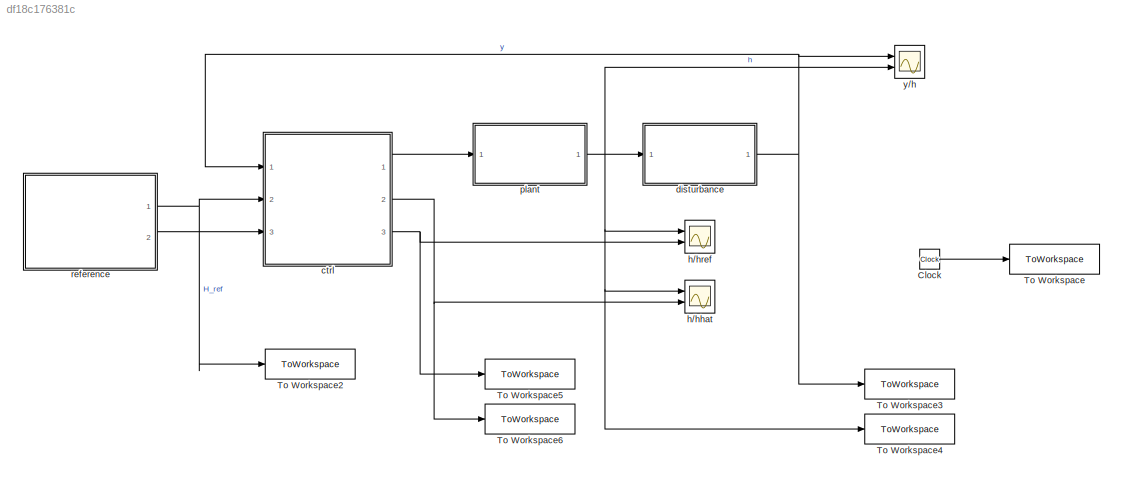
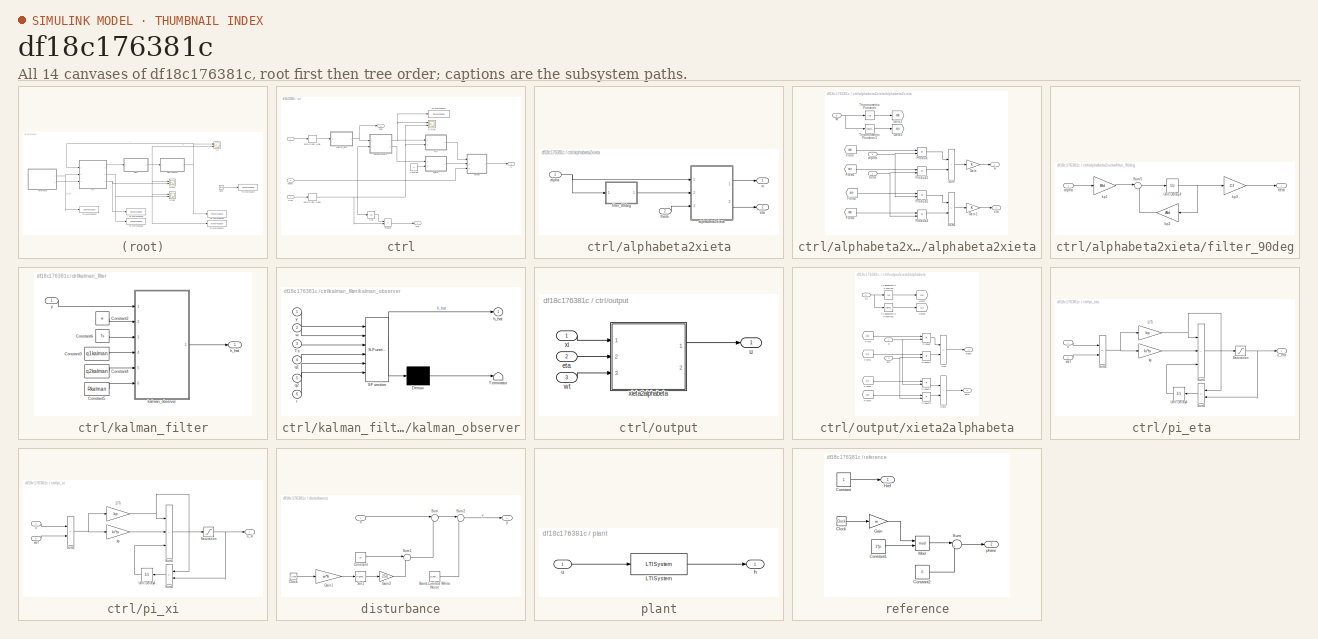
[diagram: thumbnail index - all 14 canvases of the model, root first then tree order]
MODEL slx_df18c176381c
KIND model
CONFIG AbsTol = auto
CONFIG EnableMultiTasking = off
CONFIG FixedStep = auto
CONFIG MaxStep = Ts
CONFIG MinStep = auto
CONFIG RelTol = auto
CONFIG SampleTimeConstraint = Unconstrained
CONFIG Solver = ode23tb
CONFIG SolverName = ode23tb
CONFIG StartTime = 0.0
CONFIG StopTime = simlength
BLOCK [Clock] Clock
BLOCK [ToWorkspace] To Workspace
  FixptAsFi = on
  MaxDataPoints = Nc
  Ports = [1]
  SampleTime = Tc
  VariableName = t
BLOCK [ToWorkspace] To Workspace2
  FixptAsFi = on
  MaxDataPoints = Nc
  Ports = [1]
  SampleTime = Tc
  VariableName = Href_sim
BLOCK [ToWorkspace] To Workspace3
  FixptAsFi = on
  MaxDataPoints = Nc
  Ports = [1]
  SampleTime = Tc
  VariableName = y_sim
BLOCK [ToWorkspace] To Workspace4
  FixptAsFi = on
  MaxDataPoints = Nc
  Ports = [1]
  SampleTime = Tc
  VariableName = h_sim
BLOCK [ToWorkspace] To Workspace5
  FixptAsFi = on
  MaxDataPoints = Nc
  Ports = [1]
  SampleTime = Tc
  VariableName = href_sim
BLOCK [ToWorkspace] To Workspace6
  FixptAsFi = on
  MaxDataPoints = Nc
  Ports = [1]
  SampleTime = Tc
  VariableName = hhat_sim
BLOCK [SubSystem] ctrl
  Ports = [3, 3]
  RequestExecContextInheritance = off
BLOCK [Constant] ctrl/Constant
  Value = 0
BLOCK [Trigonometry] ctrl/Cos
  Operator = cos
  Ports = [1, 1]
BLOCK [Scope] ctrl/H//Href
  Floating = off
  NumInputPorts = 2
  Ports = [2]
  ScopeSpecificationString = Simulink.scopes.TimeScopeBlockCfg('CurrentConfiguration', extmgr.ConfigurationSet(extmgr.Configuration('Core','General UI',true),extmgr.Configuration('Core','Source UI',true),extmgr.Configuration('Sources','WiredSimulink',true,'SampleTime','Ts','DataLoggingVariableName','ScopeData2'),extmgr.Configuration('Visuals','Time Domain',true,'SerializedDisplays',{struct('MinYLimReal','-0.22527','MaxYLimRea...<+1765ch>
BLOCK [Inport] ctrl/Href
  Port = 2
BLOCK [Product] ctrl/Product
  Ports = [2, 1]
BLOCK [ToWorkspace] ctrl/To Workspace1
  FixptAsFi = on
  MaxDataPoints = Nc
  Ports = [1]
  SampleTime = Tc
  VariableName = H_sim
BLOCK [ZeroOrderHold] ctrl/Zero-Order Hold
  SampleTime = Ts
BLOCK [ZeroOrderHold] ctrl/Zero-Order Hold1
  SampleTime = Ts
BLOCK [SubSystem] ctrl/alphabeta2xieta
  Ports = [2, 2]
  RequestExecContextInheritance = off
BLOCK [Inport] ctrl/alphabeta2xieta/alpha
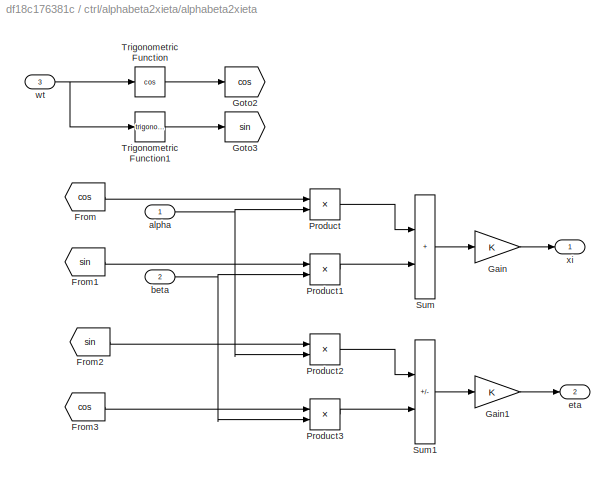
BLOCK [SubSystem] ctrl/alphabeta2xieta/alphabeta2xieta
  Ports = [3, 2]
  RequestExecContextInheritance = off
BLOCK [From] ctrl/alphabeta2xieta/alphabeta2xieta/From
  CloseFcn = tagdialog Close
  GotoTag = cos
BLOCK [From] ctrl/alphabeta2xieta/alphabeta2xieta/From1
  CloseFcn = tagdialog Close
  GotoTag = sin
BLOCK [From] ctrl/alphabeta2xieta/alphabeta2xieta/From2
  CloseFcn = tagdialog Close
  GotoTag = sin
BLOCK [From] ctrl/alphabeta2xieta/alphabeta2xieta/From3
  CloseFcn = tagdialog Close
  GotoTag = cos
BLOCK [Gain] ctrl/alphabeta2xieta/alphabeta2xieta/Gain
BLOCK [Gain] ctrl/alphabeta2xieta/alphabeta2xieta/Gain1
BLOCK [Goto] ctrl/alphabeta2xieta/alphabeta2xieta/Goto2
  GotoTag = cos
BLOCK [Goto] ctrl/alphabeta2xieta/alphabeta2xieta/Goto3
  GotoTag = sin
BLOCK [Product] ctrl/alphabeta2xieta/alphabeta2xieta/Product
  Ports = [2, 1]
  RndMeth = Zero
BLOCK [Product] ctrl/alphabeta2xieta/alphabeta2xieta/Product1
  Ports = [2, 1]
  RndMeth = Zero
BLOCK [Product] ctrl/alphabeta2xieta/alphabeta2xieta/Product2
  Ports = [2, 1]
  RndMeth = Zero
BLOCK [Product] ctrl/alphabeta2xieta/alphabeta2xieta/Product3
  Ports = [2, 1]
  RndMeth = Zero
BLOCK [Sum] ctrl/alphabeta2xieta/alphabeta2xieta/Sum
  IconShape = rectangular
  Ports = [2, 1]
BLOCK [Sum] ctrl/alphabeta2xieta/alphabeta2xieta/Sum1
  IconShape = rectangular
  Inputs = -+
  Ports = [2, 1]
BLOCK [Trigonometry] ctrl/alphabeta2xieta/alphabeta2xieta/Trigonometric Function
  Operator = cos
  Ports = [1, 1]
BLOCK [Trigonometry] ctrl/alphabeta2xieta/alphabeta2xieta/Trigonometric Function1
  Ports = [1, 1]
BLOCK [Inport] ctrl/alphabeta2xieta/alphabeta2xieta/alpha
BLOCK [Inport] ctrl/alphabeta2xieta/alphabeta2xieta/beta
  Port = 2
BLOCK [Outport] ctrl/alphabeta2xieta/alphabeta2xieta/eta
  Port = 2
  VectorParamsAs1DForOutWhenUnconnected = off
BLOCK [Inport] ctrl/alphabeta2xieta/alphabeta2xieta/wt
  Port = 3
BLOCK [Outport] ctrl/alphabeta2xieta/alphabeta2xieta/xi
  VectorParamsAs1DForOutWhenUnconnected = off
BLOCK [Outport] ctrl/alphabeta2xieta/eta
  Port = 2
BLOCK [SubSystem] ctrl/alphabeta2xieta/filter_90deg
  Ports = [1, 1]
  RequestExecContextInheritance = off
BLOCK [Sum] ctrl/alphabeta2xieta/filter_90deg/Sum5
  Inputs = |++
  Ports = [2, 1]
BLOCK [UnitDelay] ctrl/alphabeta2xieta/filter_90deg/Unit Delay4
  HasFrameUpgradeWarning = on
  NameLocation = top
  SampleTime = Ts
BLOCK [Inport] ctrl/alphabeta2xieta/filter_90deg/alpha
BLOCK [Outport] ctrl/alphabeta2xieta/filter_90deg/beta
BLOCK [Gain] ctrl/alphabeta2xieta/filter_90deg/kp1
  Gain = Bfd
  Multiplication = Matrix(K*u)
  OutDataTypeStr = Inherit: Same as input
  ParamDataTypeStr = Inherit: Same as input
  SaturateOnIntegerOverflow = on
BLOCK [Gain] ctrl/alphabeta2xieta/filter_90deg/kp2
  Gain = Afd
  Multiplication = Matrix(K*u)
  NameLocation = top
  OutDataTypeStr = Inherit: Same as input
  ParamDataTypeStr = Inherit: Same as input
  SaturateOnIntegerOverflow = on
BLOCK [Gain] ctrl/alphabeta2xieta/filter_90deg/kp3
  Gain = Cf
  Multiplication = Matrix(K*u)
  OutDataTypeStr = Inherit: Same as input
  ParamDataTypeStr = Inherit: Same as input
  SaturateOnIntegerOverflow = on
BLOCK [Inport] ctrl/alphabeta2xieta/theta
  Port = 2
BLOCK [Outport] ctrl/alphabeta2xieta/xi
BLOCK [Outport] ctrl/hhat
  Port = 2
  VectorParamsAs1DForOutWhenUnconnected = off
BLOCK [Outport] ctrl/href
  Port = 3
  VectorParamsAs1DForOutWhenUnconnected = off
BLOCK [SubSystem] ctrl/kalman_filter
  Ports = [1, 1]
  RequestExecContextInheritance = off
BLOCK [Constant] ctrl/kalman_filter/Constant2
  Value = w
BLOCK [Constant] ctrl/kalman_filter/Constant3
  Value = q1kalman
BLOCK [Constant] ctrl/kalman_filter/Constant4
  Value = q2kalman
BLOCK [Constant] ctrl/kalman_filter/Constant5
  Value = Rkalman
BLOCK [Constant] ctrl/kalman_filter/Constant6
  Value = Ts
BLOCK [Outport] ctrl/kalman_filter/h_hat
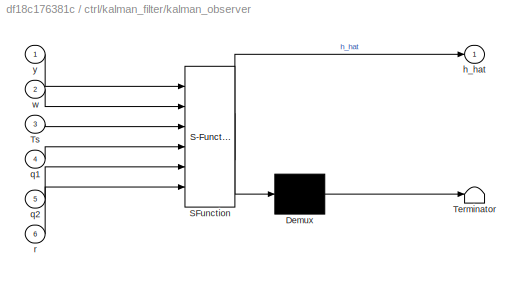
BLOCK [SubSystem] ctrl/kalman_filter/kalman_observer
  ErrorFcn = Stateflow.Translate.translate
  PermitHierarchicalResolution = ExplicitOnly
  Ports = [6, 1]
  RequestExecContextInheritance = off
  SFBlockType = MATLAB Function
  SystemSampleTime = Ts
  TreatAsAtomicUnit = on
  TreatAsGroupedWhenPropagatingVariantConditions = off
BLOCK [Demux] ctrl/kalman_filter/kalman_observer/ Demux 
  Outputs = 1
  Ports = [1, 1]
BLOCK [S-Function] ctrl/kalman_filter/kalman_observer/ SFunction 
  EnableBusSupport = on
  FunctionName = sf_sfun
  PortCounts = [6 2]
  Ports = [6, 2]
  SFcnIsStateOwnerBlock = off
  SFunctionDeploymentMode = off
  Tag = Stateflow S-Function 2
BLOCK [Terminator] ctrl/kalman_filter/kalman_observer/ Terminator 
BLOCK [Inport] ctrl/kalman_filter/kalman_observer/Ts
  Port = 3
BLOCK [Outport] ctrl/kalman_filter/kalman_observer/h_hat
  VectorParamsAs1DForOutWhenUnconnected = off
BLOCK [Inport] ctrl/kalman_filter/kalman_observer/q1
  Port = 4
BLOCK [Inport] ctrl/kalman_filter/kalman_observer/q2
  Port = 5
BLOCK [Inport] ctrl/kalman_filter/kalman_observer/r
  Port = 6
BLOCK [Inport] ctrl/kalman_filter/kalman_observer/w
  Port = 2
BLOCK [Inport] ctrl/kalman_filter/kalman_observer/y
BLOCK [Inport] ctrl/kalman_filter/y
BLOCK [SubSystem] ctrl/output
  Ports = [3, 1]
  RequestExecContextInheritance = off
BLOCK [Inport] ctrl/output/eta
  Port = 2
BLOCK [Outport] ctrl/output/u
  VectorParamsAs1DForOutWhenUnconnected = off
BLOCK [Inport] ctrl/output/wt
  Port = 3
BLOCK [Inport] ctrl/output/xi
BLOCK [SubSystem] ctrl/output/xieta2alphabeta
  Ports = [3, 2]
  RequestExecContextInheritance = off
BLOCK [From] ctrl/output/xieta2alphabeta/From
  CloseFcn = tagdialog Close
  GotoTag = cos
BLOCK [From] ctrl/output/xieta2alphabeta/From1
  CloseFcn = tagdialog Close
  GotoTag = sin
BLOCK [From] ctrl/output/xieta2alphabeta/From2
  CloseFcn = tagdialog Close
  GotoTag = sin
BLOCK [From] ctrl/output/xieta2alphabeta/From3
  CloseFcn = tagdialog Close
  GotoTag = cos
BLOCK [Goto] ctrl/output/xieta2alphabeta/Goto2
  GotoTag = cos
BLOCK [Goto] ctrl/output/xieta2alphabeta/Goto3
  GotoTag = sin
BLOCK [Product] ctrl/output/xieta2alphabeta/Product
  Ports = [2, 1]
  RndMeth = Zero
BLOCK [Product] ctrl/output/xieta2alphabeta/Product1
  Ports = [2, 1]
  RndMeth = Zero
BLOCK [Product] ctrl/output/xieta2alphabeta/Product2
  Ports = [2, 1]
  RndMeth = Zero
BLOCK [Product] ctrl/output/xieta2alphabeta/Product3
  Ports = [2, 1]
  RndMeth = Zero
BLOCK [Sum] ctrl/output/xieta2alphabeta/Sum
  IconShape = rectangular
  Inputs = +-
  Ports = [2, 1]
BLOCK [Sum] ctrl/output/xieta2alphabeta/Sum1
  IconShape = rectangular
  Ports = [2, 1]
BLOCK [Trigonometry] ctrl/output/xieta2alphabeta/Trigonometric Function
  Operator = cos
  Ports = [1, 1]
BLOCK [Trigonometry] ctrl/output/xieta2alphabeta/Trigonometric Function1
  Ports = [1, 1]
BLOCK [Outport] ctrl/output/xieta2alphabeta/alpha
  VectorParamsAs1DForOutWhenUnconnected = off
BLOCK [Outport] ctrl/output/xieta2alphabeta/beta
  Port = 2
  VectorParamsAs1DForOutWhenUnconnected = off
BLOCK [Inport] ctrl/output/xieta2alphabeta/eta
  Port = 2
BLOCK [Inport] ctrl/output/xieta2alphabeta/wt
  Port = 3
BLOCK [Inport] ctrl/output/xieta2alphabeta/xi
BLOCK [Inport] ctrl/phase
  Port = 3
BLOCK [SubSystem] ctrl/pi_eta 
  Ports = [2, 1]
  RequestExecContextInheritance = off
BLOCK [Gain] ctrl/pi_eta /1//Ti
  Gain = kp
  OutDataTypeStr = Inherit: Same as input
  ParamDataTypeStr = Inherit: Same as input
  SaturateOnIntegerOverflow = on
BLOCK [Saturate] ctrl/pi_eta /Saturation
  LowerLimit = sat_neg
  UpperLimit = sat_pos
BLOCK [Sum] ctrl/pi_eta /Sum1
  IconShape = rectangular
  Inputs = +++
  Ports = [3, 1]
  SaturateOnIntegerOverflow = on
BLOCK [Sum] ctrl/pi_eta /Sum2
  IconShape = rectangular
  Inputs = -+
  Ports = [2, 1]
  SaturateOnIntegerOverflow = on
BLOCK [Sum] ctrl/pi_eta /Sum3
  IconShape = rectangular
  Inputs = -+
  NameLocation = top
  Ports = [2, 1]
  SaturateOnIntegerOverflow = on
BLOCK [UnitDelay] ctrl/pi_eta /Unit Delay4
  HasFrameUpgradeWarning = on
  SampleTime = ts
BLOCK [Gain] ctrl/pi_eta /kp
  Gain = ki*ts
  OutDataTypeStr = Inherit: Same as input
  ParamDataTypeStr = Inherit: Same as input
  SaturateOnIntegerOverflow = on
BLOCK [Outport] ctrl/pi_eta /u_eta
BLOCK [Inport] ctrl/pi_eta /x
BLOCK [Inport] ctrl/pi_eta /xref
  Port = 2
BLOCK [SubSystem] ctrl/pi_xi
  Ports = [2, 1]
  RequestExecContextInheritance = off
BLOCK [Gain] ctrl/pi_xi/1//Ti
  Gain = kp
  OutDataTypeStr = Inherit: Same as input
  ParamDataTypeStr = Inherit: Same as input
  SaturateOnIntegerOverflow = on
BLOCK [Saturate] ctrl/pi_xi/Saturation
  LowerLimit = sat_neg
  UpperLimit = sat_pos
BLOCK [Sum] ctrl/pi_xi/Sum1
  IconShape = rectangular
  Inputs = +++
  Ports = [3, 1]
  SaturateOnIntegerOverflow = on
BLOCK [Sum] ctrl/pi_xi/Sum2
  IconShape = rectangular
  Inputs = -+
  Ports = [2, 1]
  SaturateOnIntegerOverflow = on
BLOCK [Sum] ctrl/pi_xi/Sum3
  IconShape = rectangular
  Inputs = -+
  NameLocation = top
  Ports = [2, 1]
  SaturateOnIntegerOverflow = on
BLOCK [UnitDelay] ctrl/pi_xi/Unit Delay4
  HasFrameUpgradeWarning = on
  SampleTime = ts
BLOCK [Gain] ctrl/pi_xi/kp
  Gain = ki*ts
  OutDataTypeStr = Inherit: Same as input
  ParamDataTypeStr = Inherit: Same as input
  SaturateOnIntegerOverflow = on
BLOCK [Outport] ctrl/pi_xi/u_xi
BLOCK [Inport] ctrl/pi_xi/x
BLOCK [Inport] ctrl/pi_xi/xref
  Port = 2
BLOCK [Outport] ctrl/u
  VectorParamsAs1DForOutWhenUnconnected = off
BLOCK [Inport] ctrl/y
BLOCK [SubSystem] disturbance
  Ports = [1, 1]
  RequestExecContextInheritance = off
BLOCK [Reference] disturbance/Band-Limited White Noise  REF=simulink/Sources/Band-Limited
White Noise
  Ports = [0, 1]
  SourceBlock = simulink/Sources/Band-Limited\nWhite Noise
  SourceProductBaseCode = SL
  SourceType = Band-Limited White Noise.
BLOCK [Clock] disturbance/Clock
BLOCK [Constant] disturbance/Constant
  Value = 10
BLOCK [Gain] disturbance/Gain1
  Gain = w*6
BLOCK [Gain] disturbance/Gain3
  Gain = 250
BLOCK [Trigonometry] disturbance/Sin1
  Ports = [1, 1]
BLOCK [Sum] disturbance/Sum
  Inputs = |++
  Ports = [2, 1]
BLOCK [Sum] disturbance/Sum1
  Inputs = |++
  Ports = [2, 1]
BLOCK [Sum] disturbance/Sum2
  Inputs = |++
  Ports = [2, 1]
BLOCK [Inport] disturbance/h
BLOCK [Outport] disturbance/y
BLOCK [Scope] h//hhat
  Floating = off
  NumInputPorts = 2
  Ports = [2]
  ScopeSpecificationString = Simulink.scopes.TimeScopeBlockCfg('CurrentConfiguration', extmgr.ConfigurationSet(extmgr.Configuration('Core','General UI',true),extmgr.Configuration('Core','Source UI',true),extmgr.Configuration('Sources','WiredSimulink',true,'SampleTime','Ts','DataLoggingVariableName','ScopeData1'),extmgr.Configuration('Visuals','Time Domain',true,'SerializedDisplays',{struct('MinYLimReal','-0.98348','MaxYLimRea...<+1745ch>
BLOCK [Scope] h//href
  Floating = off
  NumInputPorts = 2
  Ports = [2]
  ScopeSpecificationString = Simulink.scopes.TimeScopeBlockCfg('CurrentConfiguration', extmgr.ConfigurationSet(extmgr.Configuration('Core','General UI',true),extmgr.Configuration('Core','Source UI',true),extmgr.Configuration('Sources','WiredSimulink',true,'SampleTime','Ts'),extmgr.Configuration('Visuals','Time Domain',true,'SerializedDisplays',{struct('MinYLimReal','-2.16077','MaxYLimReal','1.79359','YLabelReal','','MinYLimMa...<+1703ch>
BLOCK [SubSystem] plant
  Ports = [1, 1]
  RequestExecContextInheritance = off
BLOCK [Reference] plant/LTI System  REF=cstblocks/LTI System
  Ports = [1, 1]
  SourceBlock = cstblocks/LTI System
  SourceProductBaseCode = CT
  SourceType = LTI Block
BLOCK [Outport] plant/h
  VectorParamsAs1DForOutWhenUnconnected = off
BLOCK [Inport] plant/u
BLOCK [SubSystem] reference
  Ports = [0, 2]
  RequestExecContextInheritance = off
BLOCK [Clock] reference/Clock
BLOCK [Constant] reference/Constant
BLOCK [Constant] reference/Constant1
  Value = 2*pi
BLOCK [Constant] reference/Constant2
  Value = 0
BLOCK [Gain] reference/Gain
  Gain = w
BLOCK [Outport] reference/Href
BLOCK [Math] reference/Mod
  Operator = mod
  Ports = [2, 1]
BLOCK [Sum] reference/Sum
  Inputs = |++
  Ports = [2, 1]
BLOCK [Outport] reference/phase
  Port = 2
BLOCK [Scope] y//h
  Floating = off
  NumInputPorts = 2
  Ports = [2]
  ScopeSpecificationString = Simulink.scopes.TimeScopeBlockCfg('CurrentConfiguration', extmgr.ConfigurationSet(extmgr.Configuration('Core','General UI',true),extmgr.Configuration('Core','Source UI',true),extmgr.Configuration('Sources','WiredSimulink',true,'DataLoggingVariableName','ScopeData1','SampleTime','Ts'),extmgr.Configuration('Visuals','Time Domain',true,'SerializedDisplays',{struct('MinYLimReal','-13.92521','MaxYLimRe...<+2459ch>
LINE Clock:1 -> To Workspace:1
LINE ctrl/Constant:1 -> ctrl/pi_eta :2
LINE ctrl/Cos:1 -> ctrl/Product:1
LINE ctrl/Href:1 -> ctrl/Zero-Order Hold1:1
LINE ctrl/Product:1 -> ctrl/href:1
NET ctrl/Zero-Order Hold1:1 -> ctrl/H//Href:2, ctrl/Product:2, ctrl/pi_xi:2
LINE ctrl/Zero-Order Hold:1 -> ctrl/kalman_filter:1
NET ctrl/alphabeta2xieta/alpha:1 -> ctrl/alphabeta2xieta/alphabeta2xieta:1, ctrl/alphabeta2xieta/filter_90deg:1
LINE ctrl/alphabeta2xieta/alphabeta2xieta/From1:1 -> ctrl/alphabeta2xieta/alphabeta2xieta/Product1:1
LINE ctrl/alphabeta2xieta/alphabeta2xieta/From2:1 -> ctrl/alphabeta2xieta/alphabeta2xieta/Product2:1
LINE ctrl/alphabeta2xieta/alphabeta2xieta/From3:1 -> ctrl/alphabeta2xieta/alphabeta2xieta/Product3:1
LINE ctrl/alphabeta2xieta/alphabeta2xieta/From:1 -> ctrl/alphabeta2xieta/alphabeta2xieta/Product:1
LINE ctrl/alphabeta2xieta/alphabeta2xieta/Gain1:1 -> ctrl/alphabeta2xieta/alphabeta2xieta/eta:1
LINE ctrl/alphabeta2xieta/alphabeta2xieta/Gain:1 -> ctrl/alphabeta2xieta/alphabeta2xieta/xi:1
LINE ctrl/alphabeta2xieta/alphabeta2xieta/Product1:1 -> ctrl/alphabeta2xieta/alphabeta2xieta/Sum:2
LINE ctrl/alphabeta2xieta/alphabeta2xieta/Product2:1 -> ctrl/alphabeta2xieta/alphabeta2xieta/Sum1:1
LINE ctrl/alphabeta2xieta/alphabeta2xieta/Product3:1 -> ctrl/alphabeta2xieta/alphabeta2xieta/Sum1:2
LINE ctrl/alphabeta2xieta/alphabeta2xieta/Product:1 -> ctrl/alphabeta2xieta/alphabeta2xieta/Sum:1
LINE ctrl/alphabeta2xieta/alphabeta2xieta/Sum1:1 -> ctrl/alphabeta2xieta/alphabeta2xieta/Gain1:1
LINE ctrl/alphabeta2xieta/alphabeta2xieta/Sum:1 -> ctrl/alphabeta2xieta/alphabeta2xieta/Gain:1
LINE ctrl/alphabeta2xieta/alphabeta2xieta/Trigonometric Function1:1 -> ctrl/alphabeta2xieta/alphabeta2xieta/Goto3:1
LINE ctrl/alphabeta2xieta/alphabeta2xieta/Trigonometric Function:1 -> ctrl/alphabeta2xieta/alphabeta2xieta/Goto2:1
NET ctrl/alphabeta2xieta/alphabeta2xieta/alpha:1 -> ctrl/alphabeta2xieta/alphabeta2xieta/Product2:2, ctrl/alphabeta2xieta/alphabeta2xieta/Product:2
NET ctrl/alphabeta2xieta/alphabeta2xieta/beta:1 -> ctrl/alphabeta2xieta/alphabeta2xieta/Product1:2, ctrl/alphabeta2xieta/alphabeta2xieta/Product3:2
NET ctrl/alphabeta2xieta/alphabeta2xieta/wt:1 -> ctrl/alphabeta2xieta/alphabeta2xieta/Trigonometric Function1:1, ctrl/alphabeta2xieta/alphabeta2xieta/Trigonometric Function:1
LINE ctrl/alphabeta2xieta/alphabeta2xieta:1 -> ctrl/alphabeta2xieta/xi:1
LINE ctrl/alphabeta2xieta/alphabeta2xieta:2 -> ctrl/alphabeta2xieta/eta:1
LINE ctrl/alphabeta2xieta/filter_90deg/Sum5:1 -> ctrl/alphabeta2xieta/filter_90deg/Unit Delay4:1
NET ctrl/alphabeta2xieta/filter_90deg/Unit Delay4:1 -> ctrl/alphabeta2xieta/filter_90deg/kp2:1, ctrl/alphabeta2xieta/filter_90deg/kp3:1
LINE ctrl/alphabeta2xieta/filter_90deg/alpha:1 -> ctrl/alphabeta2xieta/filter_90deg/kp1:1
LINE ctrl/alphabeta2xieta/filter_90deg/kp1:1 -> ctrl/alphabeta2xieta/filter_90deg/Sum5:1
LINE ctrl/alphabeta2xieta/filter_90deg/kp2:1 -> ctrl/alphabeta2xieta/filter_90deg/Sum5:2
LINE ctrl/alphabeta2xieta/filter_90deg/kp3:1 -> ctrl/alphabeta2xieta/filter_90deg/beta:1
LINE ctrl/alphabeta2xieta/filter_90deg:1 -> ctrl/alphabeta2xieta/alphabeta2xieta:2
LINE ctrl/alphabeta2xieta/theta:1 -> ctrl/alphabeta2xieta/alphabeta2xieta:3
NET ctrl/alphabeta2xieta:1 -> ctrl/H//Href:1, ctrl/To Workspace1:1, ctrl/pi_xi:1
LINE ctrl/alphabeta2xieta:2 -> ctrl/pi_eta :1
LINE ctrl/kalman_filter/Constant2:1 -> ctrl/kalman_filter/kalman_observer:2
LINE ctrl/kalman_filter/Constant3:1 -> ctrl/kalman_filter/kalman_observer:4
LINE ctrl/kalman_filter/Constant4:1 -> ctrl/kalman_filter/kalman_observer:5
LINE ctrl/kalman_filter/Constant5:1 -> ctrl/kalman_filter/kalman_observer:6
LINE ctrl/kalman_filter/Constant6:1 -> ctrl/kalman_filter/kalman_observer:3
LINE ctrl/kalman_filter/kalman_observer:1 -> ctrl/kalman_filter/h_hat:1
LINE ctrl/kalman_filter/y:1 -> ctrl/kalman_filter/kalman_observer:1
NET ctrl/kalman_filter:1 -> ctrl/alphabeta2xieta:1, ctrl/hhat:1
LINE ctrl/output/eta:1 -> ctrl/output/xieta2alphabeta:2
LINE ctrl/output/wt:1 -> ctrl/output/xieta2alphabeta:3
LINE ctrl/output/xi:1 -> ctrl/output/xieta2alphabeta:1
LINE ctrl/output/xieta2alphabeta/From1:1 -> ctrl/output/xieta2alphabeta/Product1:1
LINE ctrl/output/xieta2alphabeta/From2:1 -> ctrl/output/xieta2alphabeta/Product2:1
LINE ctrl/output/xieta2alphabeta/From3:1 -> ctrl/output/xieta2alphabeta/Product3:1
LINE ctrl/output/xieta2alphabeta/From:1 -> ctrl/output/xieta2alphabeta/Product:1
LINE ctrl/output/xieta2alphabeta/Product1:1 -> ctrl/output/xieta2alphabeta/Sum:2
LINE ctrl/output/xieta2alphabeta/Product2:1 -> ctrl/output/xieta2alphabeta/Sum1:1
LINE ctrl/output/xieta2alphabeta/Product3:1 -> ctrl/output/xieta2alphabeta/Sum1:2
LINE ctrl/output/xieta2alphabeta/Product:1 -> ctrl/output/xieta2alphabeta/Sum:1
LINE ctrl/output/xieta2alphabeta/Sum1:1 -> ctrl/output/xieta2alphabeta/beta:1
LINE ctrl/output/xieta2alphabeta/Sum:1 -> ctrl/output/xieta2alphabeta/alpha:1
LINE ctrl/output/xieta2alphabeta/Trigonometric Function1:1 -> ctrl/output/xieta2alphabeta/Goto3:1
LINE ctrl/output/xieta2alphabeta/Trigonometric Function:1 -> ctrl/output/xieta2alphabeta/Goto2:1
NET ctrl/output/xieta2alphabeta/eta:1 -> ctrl/output/xieta2alphabeta/Product1:2, ctrl/output/xieta2alphabeta/Product3:2
NET ctrl/output/xieta2alphabeta/wt:1 -> ctrl/output/xieta2alphabeta/Trigonometric Function1:1, ctrl/output/xieta2alphabeta/Trigonometric Function:1
NET ctrl/output/xieta2alphabeta/xi:1 -> ctrl/output/xieta2alphabeta/Product2:2, ctrl/output/xieta2alphabeta/Product:2
LINE ctrl/output/xieta2alphabeta:1 -> ctrl/output/u:1
LINE ctrl/output:1 -> ctrl/u:1
NET ctrl/phase:1 -> ctrl/Cos:1, ctrl/alphabeta2xieta:2, ctrl/output:3
NET ctrl/pi_eta /1//Ti:1 -> ctrl/pi_eta /Sum1:1, ctrl/pi_eta /Sum3:1
NET ctrl/pi_eta /Saturation:1 -> ctrl/pi_eta /Sum3:2, ctrl/pi_eta /u_eta:1
LINE ctrl/pi_eta /Sum1:1 -> ctrl/pi_eta /Saturation:1
NET ctrl/pi_eta /Sum2:1 -> ctrl/pi_eta /1//Ti:1, ctrl/pi_eta /kp:1
LINE ctrl/pi_eta /Sum3:1 -> ctrl/pi_eta /Unit Delay4:1
LINE ctrl/pi_eta /Unit Delay4:1 -> ctrl/pi_eta /Sum1:3
LINE ctrl/pi_eta /kp:1 -> ctrl/pi_eta /Sum1:2
LINE ctrl/pi_eta /x:1 -> ctrl/pi_eta /Sum2:1
LINE ctrl/pi_eta /xref:1 -> ctrl/pi_eta /Sum2:2
LINE ctrl/pi_eta :1 -> ctrl/output:2
NET ctrl/pi_xi/1//Ti:1 -> ctrl/pi_xi/Sum1:1, ctrl/pi_xi/Sum3:1
NET ctrl/pi_xi/Saturation:1 -> ctrl/pi_xi/Sum3:2, ctrl/pi_xi/u_xi:1
LINE ctrl/pi_xi/Sum1:1 -> ctrl/pi_xi/Saturation:1
NET ctrl/pi_xi/Sum2:1 -> ctrl/pi_xi/1//Ti:1, ctrl/pi_xi/kp:1
LINE ctrl/pi_xi/Sum3:1 -> ctrl/pi_xi/Unit Delay4:1
LINE ctrl/pi_xi/Unit Delay4:1 -> ctrl/pi_xi/Sum1:3
LINE ctrl/pi_xi/kp:1 -> ctrl/pi_xi/Sum1:2
LINE ctrl/pi_xi/x:1 -> ctrl/pi_xi/Sum2:1
LINE ctrl/pi_xi/xref:1 -> ctrl/pi_xi/Sum2:2
LINE ctrl/pi_xi:1 -> ctrl/output:1
LINE ctrl/y:1 -> ctrl/Zero-Order Hold:1
LINE ctrl:1 -> plant:1
NET ctrl:2 -> To Workspace6:1, h//hhat:2
NET ctrl:3 -> To Workspace5:1, h//href:2
LINE disturbance/Band-Limited White Noise:1 -> disturbance/Sum2:2
LINE disturbance/Clock:1 -> disturbance/Gain1:1
LINE disturbance/Constant:1 -> disturbance/Sum1:1
LINE disturbance/Gain1:1 -> disturbance/Sin1:1
LINE disturbance/Gain3:1 -> disturbance/Sum1:2
LINE disturbance/Sin1:1 -> disturbance/Gain3:1
LINE disturbance/Sum1:1 -> disturbance/Sum:2
LINE disturbance/Sum2:1 -> disturbance/y:1
LINE disturbance/Sum:1 -> disturbance/Sum2:1
LINE disturbance/h:1 -> disturbance/Sum:1
NET disturbance:1 -> To Workspace3:1, ctrl:1, y//h:1
LINE plant/LTI System:1 -> plant/h:1
LINE plant/u:1 -> plant/LTI System:1
NET plant:1 -> To Workspace4:1, disturbance:1, h//hhat:1, h//href:1, y//h:2
LINE reference/Clock:1 -> reference/Gain:1
LINE reference/Constant1:1 -> reference/Mod:2
LINE reference/Constant2:1 -> reference/Sum:2
LINE reference/Constant:1 -> reference/Href:1
LINE reference/Gain:1 -> reference/Mod:1
LINE reference/Mod:1 -> reference/Sum:1
LINE reference/Sum:1 -> reference/phase:1
NET reference:1 -> To Workspace2:1, ctrl:2
LINE reference:2 -> ctrl:3
note: NET lines group one-source signal fan-out (src -> all destinations, sorted); 1:1 wires keep LINE
CHART ctrl/kalman_filter/kalman_observer states=1 transitions=1
  STATE_LABEL 'eML_blk_kernel()'
  STATE_LABEL 'SCRIPT:\nfunction h_hat   = KFO(y,w,Ts,q1,q2,r)\n\n    persistent   x1_po x2_po p11_po p12_po p21_po p22_po\n\n    if isempty(x1_po)\n        x1_po = 0;\n        x2_po = 0;\n        p11_po = 0;\n        p12_po = 0;\n        p21_po = 0;\n        p22_po = 0;        \n    end\n    \n    a11 = cos(w*Ts);\n    a12 = sin(w*Ts);\n    a21 = -sin(w*Ts);\n    a22 = cos(w*Ts);\n   \n    \n    \n    x1_pr = a11*x1_po + a12*x2_po;...<+639ch>'
CHART  states=0 transitions=0
